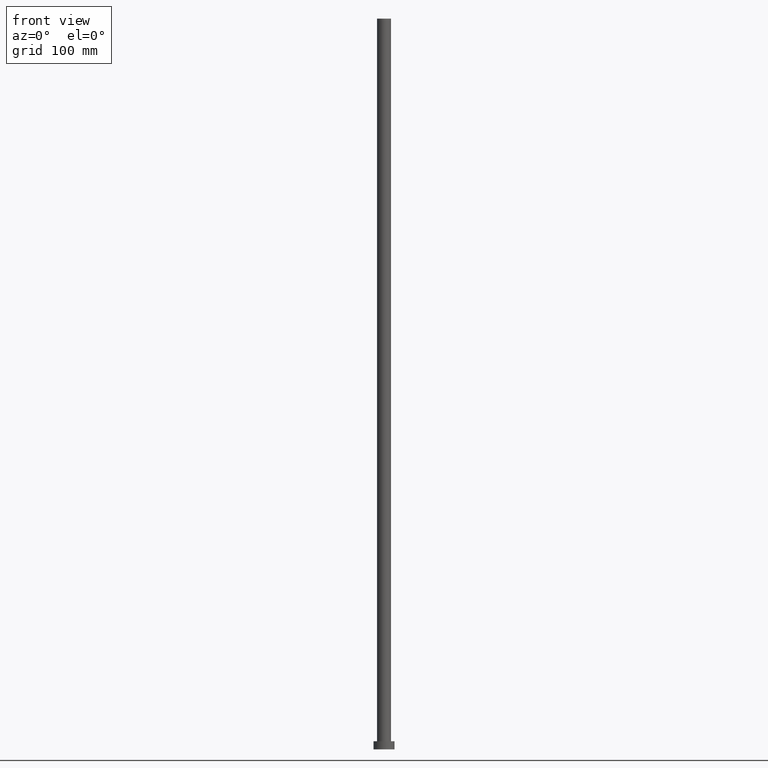
[diagram: clean part render]
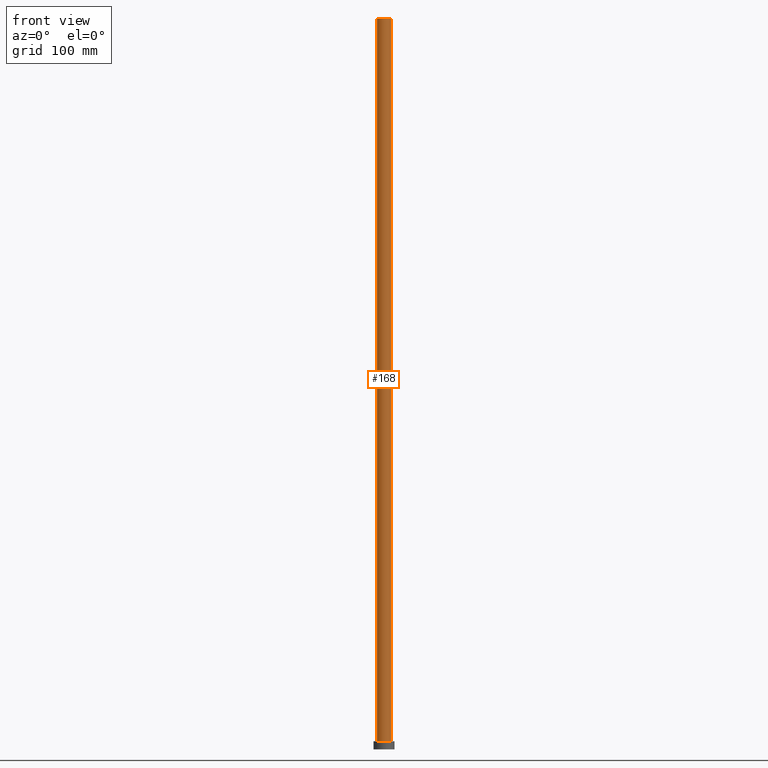
[diagram: same view with one face highlighted and labeled with its STEP entity id]
A machine part, front view. The second image highlights one B-rep face of the part: STEP entity #168.
In plain terms, the highlighted cylindrical surface (edge-blend (fillet) strip) has radius 6 mm, axis along (-0, -0, -1).
Its self-contained STEP definition (entity closure, byte-faithful):
#6 = CARTESIAN_POINT ( 'NONE',  ( -6.000000000000000888, 0.000000000000000000, 630.0000000000000000 ) ) ;
#11 = DIRECTION ( 'NONE',  ( 1.000000000000000000, 0.000000000000000000, 0.000000000000000000 ) ) ;
#12 = EDGE_CURVE ( 'NONE', #140, #51, #132, .T. ) ;
#36 = CARTESIAN_POINT ( 'NONE',  ( -6.000000000000000888, 0.000000000000000000, 630.0000000000000000 ) ) ;
#42 = CARTESIAN_POINT ( 'NONE',  ( 0.000000000000000000, 0.000000000000000000, 7.000000000000000000 ) ) ;
#43 = DIRECTION ( 'NONE',  ( 0.000000000000000000, 0.000000000000000000, 1.000000000000000000 ) ) ;
#48 = EDGE_CURVE ( 'NONE', #140, #85, #248, .T. ) ;
#49 = CYLINDRICAL_SURFACE ( 'NONE', #186, 6.000000000000000888 ) ;
#51 = VERTEX_POINT ( 'NONE', #214 ) ;
#58 = VERTEX_POINT ( 'NONE', #250 ) ;
#74 = CARTESIAN_POINT ( 'NONE',  ( 6.000000000000000888, 7.347880794884120722E-16, 630.0000000000000000 ) ) ;
#85 = VERTEX_POINT ( 'NONE', #131 ) ;
#101 = AXIS2_PLACEMENT_3D ( 'NONE', #218, #251, #11 ) ;
#108 = LINE ( 'NONE', #74, #213 ) ;
#113 = DIRECTION ( 'NONE',  ( -0.000000000000000000, -0.000000000000000000, -1.000000000000000000 ) ) ;
#126 = VECTOR ( 'NONE', #113, 1000.000000000000000 ) ;
#131 = CARTESIAN_POINT ( 'NONE',  ( -6.000000000000000888, 0.000000000000000000, 7.000000000000000000 ) ) ;
#132 = CIRCLE ( 'NONE', #101, 6.000000000000000888 ) ;
#134 = CARTESIAN_POINT ( 'NONE',  ( 0.000000000000000000, 0.000000000000000000, 630.0000000000000000 ) ) ;
#140 = VERTEX_POINT ( 'NONE', #36 ) ;
#143 = DIRECTION ( 'NONE',  ( -1.000000000000000000, 0.000000000000000000, 0.000000000000000000 ) ) ;
#148 = EDGE_CURVE ( 'NONE', #51, #58, #108, .T. ) ;
#156 = ORIENTED_EDGE ( 'NONE', *, *, #199, .T. ) ;
#159 = ORIENTED_EDGE ( 'NONE', *, *, #148, .F. ) ;
#160 = CIRCLE ( 'NONE', #220, 6.000000000000000888 ) ;
#168 = ADVANCED_FACE ( 'NONE', ( #224 ), #49, .T. ) ;
#170 = DIRECTION ( 'NONE',  ( -0.000000000000000000, -0.000000000000000000, -1.000000000000000000 ) ) ;
#173 = ORIENTED_EDGE ( 'NONE', *, *, #12, .F. ) ;
#186 = AXIS2_PLACEMENT_3D ( 'NONE', #134, #247, #143 ) ;
#199 = EDGE_CURVE ( 'NONE', #85, #58, #160, .T. ) ;
#200 = ORIENTED_EDGE ( 'NONE', *, *, #48, .T. ) ;
#203 = DIRECTION ( 'NONE',  ( 1.000000000000000000, 0.000000000000000000, 0.000000000000000000 ) ) ;
#213 = VECTOR ( 'NONE', #170, 1000.000000000000000 ) ;
#214 = CARTESIAN_POINT ( 'NONE',  ( 6.000000000000000888, 7.347880794884120722E-16, 630.0000000000000000 ) ) ;
#218 = CARTESIAN_POINT ( 'NONE',  ( 0.000000000000000000, 0.000000000000000000, 630.0000000000000000 ) ) ;
#220 = AXIS2_PLACEMENT_3D ( 'NONE', #42, #43, #203 ) ;
#224 = FACE_OUTER_BOUND ( 'NONE', #232, .T. ) ;
#232 = EDGE_LOOP ( 'NONE', ( #159, #173, #200, #156 ) ) ;
#247 = DIRECTION ( 'NONE',  ( -0.000000000000000000, -0.000000000000000000, -1.000000000000000000 ) ) ;
#248 = LINE ( 'NONE', #6, #126 ) ;
#250 = CARTESIAN_POINT ( 'NONE',  ( 6.000000000000000888, 7.347880794884120722E-16, 7.000000000000000000 ) ) ;
#251 = DIRECTION ( 'NONE',  ( 0.000000000000000000, 0.000000000000000000, 1.000000000000000000 ) ) ;